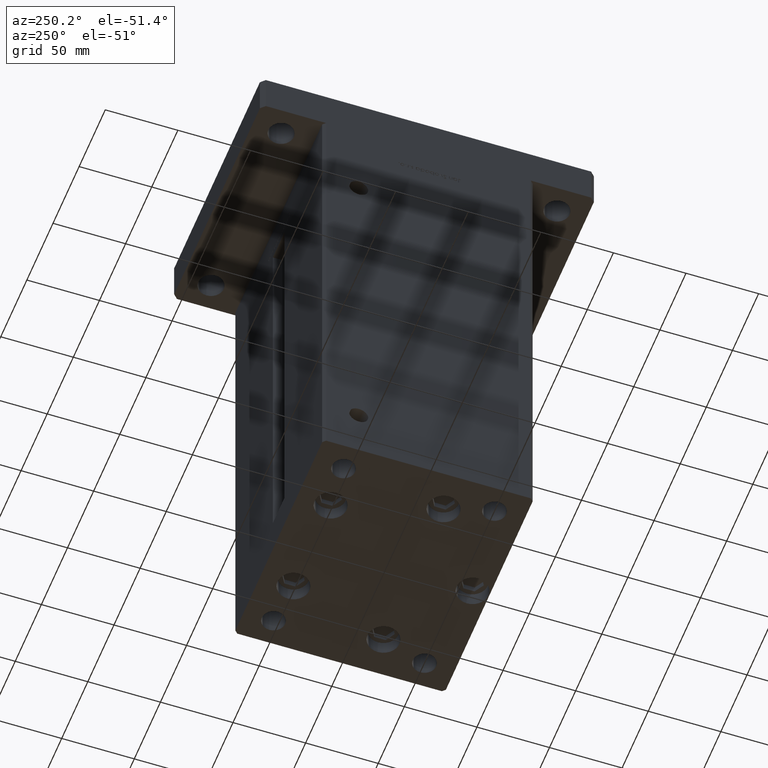
[diagram: clean part render]
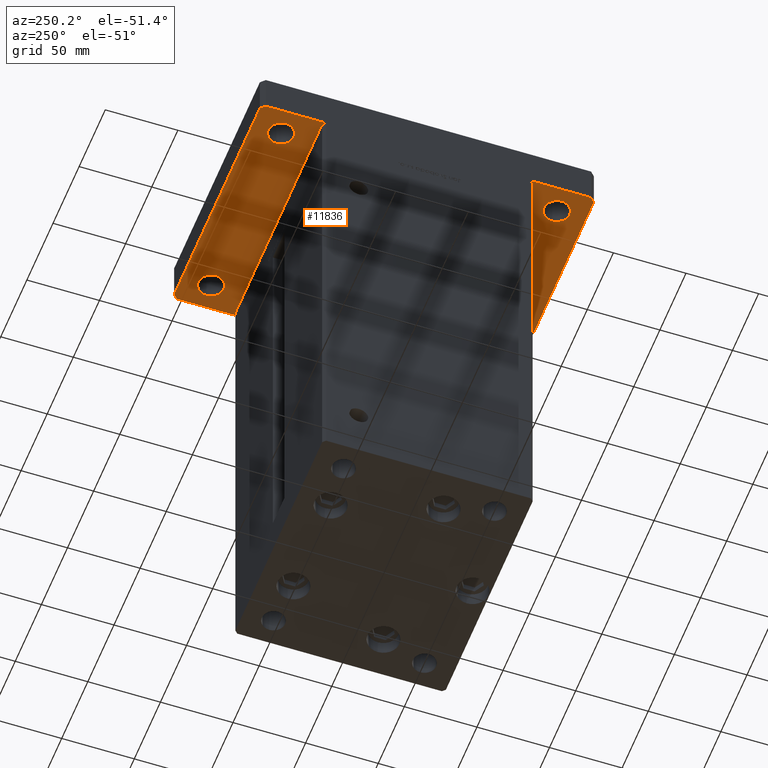
[diagram: same view with one face highlighted and labeled with its STEP entity id]
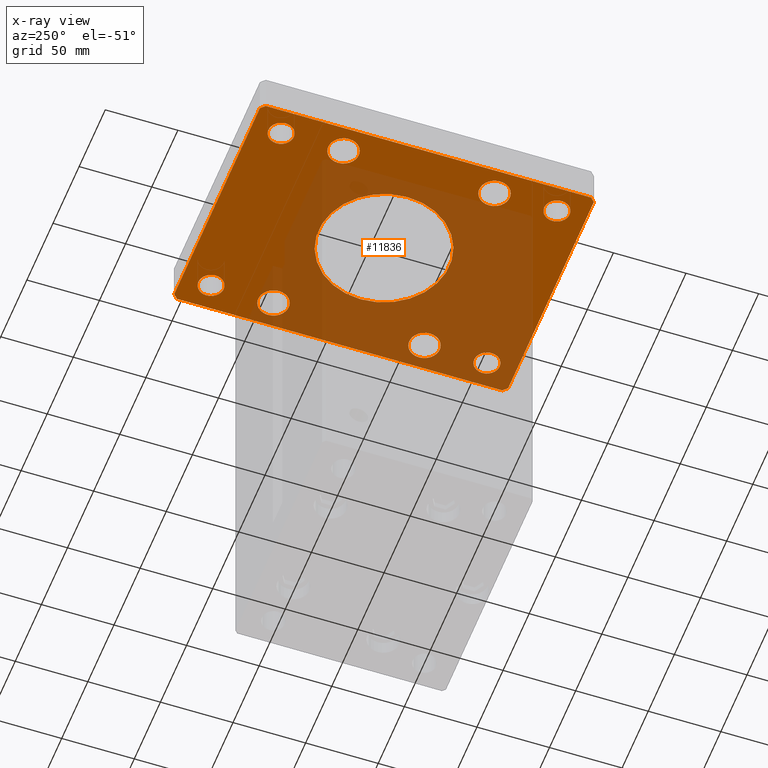
[diagram: x-ray of the same camera — body ghosted, the highlighted face saturated]
A machine part, auxiliary view. The second image highlights one B-rep face of the part: STEP entity #11836.
The next image is the same camera in x-ray: the body ghosted, the highlighted face saturated — about 54% of this face is hidden behind the body in this view.
In plain terms, the highlighted planar face has unit normal (0, 0, 1).
Its self-contained STEP definition (entity closure, byte-faithful):
#322 = DIRECTION ( 'NONE',  ( 0.000000000000000000, 0.000000000000000000, 1.000000000000000000 ) ) ;
#748 = ORIENTED_EDGE ( 'NONE', *, *, #49288, .F. ) ;
#825 = ORIENTED_EDGE ( 'NONE', *, *, #9032, .T. ) ;
#937 = ORIENTED_EDGE ( 'NONE', *, *, #7989, .T. ) ;
#939 = EDGE_CURVE ( 'NONE', #12426, #35201, #33021, .T. ) ;
#1206 = ORIENTED_EDGE ( 'NONE', *, *, #48727, .T. ) ;
#1315 = LINE ( 'NONE', #5109, #9369 ) ;
#1506 = CARTESIAN_POINT ( 'NONE',  ( 82.00000000000004263, 115.0000000000000284, 0.000000000000000000 ) ) ;
#1670 = CARTESIAN_POINT ( 'NONE',  ( -58.24999999999997158, -95.00000000000001421, 0.000000000000000000 ) ) ;
#1850 = DIRECTION ( 'NONE',  ( 0.000000000000000000, 0.000000000000000000, -1.000000000000000000 ) ) ;
#1914 = CARTESIAN_POINT ( 'NONE',  ( 75.75000000000001421, 94.99999999999997158, 0.000000000000000000 ) ) ;
#1954 = VERTEX_POINT ( 'NONE', #27454 ) ;
#2034 = EDGE_LOOP ( 'NONE', ( #44220, #2956, #50103, #25651, #19753, #5271, #25499, #20722 ) ) ;
#2065 = AXIS2_PLACEMENT_3D ( 'NONE', #53494, #5487, #29101 ) ;
#2224 = VERTEX_POINT ( 'NONE', #27589 ) ;
#2542 = AXIS2_PLACEMENT_3D ( 'NONE', #23956, #27742, #19914 ) ;
#2629 = VERTEX_POINT ( 'NONE', #1506 ) ;
#2956 = ORIENTED_EDGE ( 'NONE', *, *, #47005, .F. ) ;
#3146 = VERTEX_POINT ( 'NONE', #52046 ) ;
#3179 = ORIENTED_EDGE ( 'NONE', *, *, #25388, .T. ) ;
#3905 = VERTEX_POINT ( 'NONE', #40472 ) ;
#4275 = DIRECTION ( 'NONE',  ( 1.239088197126290570E-16, -1.000000000000000000, 0.000000000000000000 ) ) ;
#4656 = CARTESIAN_POINT ( 'NONE',  ( 82.00000000000004263, 115.0000000000000284, 0.000000000000000000 ) ) ;
#4811 = CARTESIAN_POINT ( 'NONE',  ( -85.00000000000001421, 112.0000000000000000, 0.000000000000000000 ) ) ;
#4858 = VERTEX_POINT ( 'NONE', #28781 ) ;
#5103 = FACE_BOUND ( 'NONE', #11895, .T. ) ;
#5109 = CARTESIAN_POINT ( 'NONE',  ( 82.00000000000002842, -114.9999999999999147, 0.000000000000000000 ) ) ;
#5271 = ORIENTED_EDGE ( 'NONE', *, *, #27585, .F. ) ;
#5378 = DIRECTION ( 'NONE',  ( 0.7071067811865459074, 0.7071067811865491270, 0.000000000000000000 ) ) ;
#5487 = DIRECTION ( 'NONE',  ( 0.000000000000000000, 0.000000000000000000, 1.000000000000000000 ) ) ;
#5833 = CARTESIAN_POINT ( 'NONE',  ( -82.00000000000002842, 115.0000000000000000, 0.000000000000000000 ) ) ;
#5879 = EDGE_LOOP ( 'NONE', ( #11611, #825 ) ) ;
#5908 = FACE_BOUND ( 'NONE', #36641, .T. ) ;
#6255 = EDGE_LOOP ( 'NONE', ( #8854, #19737 ) ) ;
#6922 = DIRECTION ( 'NONE',  ( 0.000000000000000000, 0.000000000000000000, -1.000000000000000000 ) ) ;
#7023 = ORIENTED_EDGE ( 'NONE', *, *, #14608, .T. ) ;
#7060 = DIRECTION ( 'NONE',  ( 1.000000000000000000, 6.769652589177783879E-16, 0.000000000000000000 ) ) ;
#7235 = VECTOR ( 'NONE', #7060, 1000.000000000000000 ) ;
#7267 = DIRECTION ( 'NONE',  ( 0.000000000000000000, 0.000000000000000000, 1.000000000000000000 ) ) ;
#7410 = CARTESIAN_POINT ( 'NONE',  ( 75.74999999999998579, -95.00000000000001421, 0.000000000000000000 ) ) ;
#7537 = CARTESIAN_POINT ( 'NONE',  ( 67.00000000000000000, 94.99999999999997158, 0.000000000000000000 ) ) ;
#7732 = DIRECTION ( 'NONE',  ( -1.000000000000000000, 0.000000000000000000, 0.000000000000000000 ) ) ;
#7895 = CARTESIAN_POINT ( 'NONE',  ( 66.99999999999997158, -95.00000000000001421, 0.000000000000000000 ) ) ;
#7989 = EDGE_CURVE ( 'NONE', #12860, #40919, #12575, .T. ) ;
#8007 = CIRCLE ( 'NONE', #48608, 10.49999999999999467 ) ;
#8361 = CARTESIAN_POINT ( 'NONE',  ( -66.99999999999997158, -95.00000000000001421, 0.000000000000000000 ) ) ;
#8766 = CARTESIAN_POINT ( 'NONE',  ( 82.00000000000002842, -114.9999999999999147, 0.000000000000000000 ) ) ;
#8854 = ORIENTED_EDGE ( 'NONE', *, *, #24662, .T. ) ;
#9032 = EDGE_CURVE ( 'NONE', #29177, #50013, #16942, .T. ) ;
#9046 = EDGE_CURVE ( 'NONE', #2629, #24919, #29282, .T. ) ;
#9187 = CARTESIAN_POINT ( 'NONE',  ( 0.000000000000000000, 0.000000000000000000, 0.000000000000000000 ) ) ;
#9369 = VECTOR ( 'NONE', #5378, 1000.000000000000114 ) ;
#9373 = DIRECTION ( 'NONE',  ( 1.000000000000000000, 0.000000000000000000, 0.000000000000000000 ) ) ;
#9524 = CARTESIAN_POINT ( 'NONE',  ( -45.00000000000000711, 0.000000000000000000, 0.000000000000000000 ) ) ;
#9860 = DIRECTION ( 'NONE',  ( 0.000000000000000000, 0.000000000000000000, 1.000000000000000000 ) ) ;
#9883 = ORIENTED_EDGE ( 'NONE', *, *, #52875, .T. ) ;
#10581 = AXIS2_PLACEMENT_3D ( 'NONE', #14276, #47296, #46765 ) ;
#10611 = CARTESIAN_POINT ( 'NONE',  ( -58.24999999999999289, 95.00000000000001421, 0.000000000000000000 ) ) ;
#11380 = LINE ( 'NONE', #47941, #7235 ) ;
#11611 = ORIENTED_EDGE ( 'NONE', *, *, #47408, .T. ) ;
#11836 = ADVANCED_FACE ( 'NONE', ( #16500, #49523, #38675, #42193, #5908, #22685, #5103, #13234, #21630, #47063 ), #39206, .F. ) ;
#11895 = EDGE_LOOP ( 'NONE', ( #28639, #13688 ) ) ;
#12136 = EDGE_LOOP ( 'NONE', ( #42409, #53185 ) ) ;
#12413 = DIRECTION ( 'NONE',  ( 1.000000000000000000, 0.000000000000000000, 0.000000000000000000 ) ) ;
#12420 = VERTEX_POINT ( 'NONE', #1914 ) ;
#12426 = VERTEX_POINT ( 'NONE', #9524 ) ;
#12575 = CIRCLE ( 'NONE', #52343, 8.750000000000007105 ) ;
#12860 = VERTEX_POINT ( 'NONE', #1670 ) ;
#13018 = AXIS2_PLACEMENT_3D ( 'NONE', #28249, #26327, #26051 ) ;
#13234 = FACE_BOUND ( 'NONE', #5879, .T. ) ;
#13332 = AXIS2_PLACEMENT_3D ( 'NONE', #30112, #49422, #46638 ) ;
#13688 = ORIENTED_EDGE ( 'NONE', *, *, #22998, .T. ) ;
#13913 = CARTESIAN_POINT ( 'NONE',  ( -66.99999999999997158, -95.00000000000001421, 0.000000000000000000 ) ) ;
#14255 = CARTESIAN_POINT ( 'NONE',  ( 56.50000000000002132, -52.00000000000000000, 0.000000000000000000 ) ) ;
#14276 = CARTESIAN_POINT ( 'NONE',  ( 67.00000000000001421, 52.00000000000000000, 0.000000000000000000 ) ) ;
#14346 = EDGE_CURVE ( 'NONE', #2224, #25101, #36978, .T. ) ;
#14608 = EDGE_CURVE ( 'NONE', #41682, #29906, #47353, .T. ) ;
#14651 = CIRCLE ( 'NONE', #36288, 8.750000000000007105 ) ;
#15122 = DIRECTION ( 'NONE',  ( 0.000000000000000000, 0.000000000000000000, 1.000000000000000000 ) ) ;
#15326 = VERTEX_POINT ( 'NONE', #45585 ) ;
#15613 = DIRECTION ( 'NONE',  ( -0.7071067811865426878, 0.7071067811865524577, 0.000000000000000000 ) ) ;
#16500 = FACE_BOUND ( 'NONE', #19467, .T. ) ;
#16750 = DIRECTION ( 'NONE',  ( 0.000000000000000000, 0.000000000000000000, 1.000000000000000000 ) ) ;
#16787 = EDGE_CURVE ( 'NONE', #22411, #2224, #1315, .T. ) ;
#16942 = CIRCLE ( 'NONE', #26438, 10.49999999999999467 ) ;
#17551 = CIRCLE ( 'NONE', #20179, 8.750000000000007105 ) ;
#17868 = CARTESIAN_POINT ( 'NONE',  ( 56.50000000000002132, 52.00000000000000000, 0.000000000000000000 ) ) ;
#18129 = EDGE_LOOP ( 'NONE', ( #3179, #7023 ) ) ;
#18226 = CIRCLE ( 'NONE', #13018, 10.50000000000000178 ) ;
#18495 = VERTEX_POINT ( 'NONE', #27383 ) ;
#18738 = AXIS2_PLACEMENT_3D ( 'NONE', #9187, #22158, #29736 ) ;
#18936 = CARTESIAN_POINT ( 'NONE',  ( 58.24999999999996447, -95.00000000000001421, 0.000000000000000000 ) ) ;
#19467 = EDGE_LOOP ( 'NONE', ( #42359, #748 ) ) ;
#19737 = ORIENTED_EDGE ( 'NONE', *, *, #39302, .T. ) ;
#19753 = ORIENTED_EDGE ( 'NONE', *, *, #9046, .F. ) ;
#19787 = VERTEX_POINT ( 'NONE', #42993 ) ;
#19914 = DIRECTION ( 'NONE',  ( 1.000000000000000000, 0.000000000000000000, 0.000000000000000000 ) ) ;
#20067 = CARTESIAN_POINT ( 'NONE',  ( -84.99999999999998579, -112.0000000000000142, 0.000000000000000000 ) ) ;
#20179 = AXIS2_PLACEMENT_3D ( 'NONE', #29339, #45868, #38557 ) ;
#20722 = ORIENTED_EDGE ( 'NONE', *, *, #16787, .F. ) ;
#20885 = CARTESIAN_POINT ( 'NONE',  ( -77.50000000000000000, 52.00000000000001421, 0.000000000000000000 ) ) ;
#21223 = DIRECTION ( 'NONE',  ( 0.000000000000000000, 0.000000000000000000, 1.000000000000000000 ) ) ;
#21229 = VECTOR ( 'NONE', #37683, 1000.000000000000000 ) ;
#21553 = DIRECTION ( 'NONE',  ( 0.000000000000000000, 0.000000000000000000, 1.000000000000000000 ) ) ;
#21630 = FACE_BOUND ( 'NONE', #12136, .T. ) ;
#22142 = VERTEX_POINT ( 'NONE', #42115 ) ;
#22158 = DIRECTION ( 'NONE',  ( 0.000000000000000000, 0.000000000000000000, 1.000000000000000000 ) ) ;
#22299 = CARTESIAN_POINT ( 'NONE',  ( -67.00000000000000000, -52.00000000000000000, 0.000000000000000000 ) ) ;
#22411 = VERTEX_POINT ( 'NONE', #8766 ) ;
#22525 = CARTESIAN_POINT ( 'NONE',  ( -67.00000000000000000, 95.00000000000001421, 0.000000000000000000 ) ) ;
#22685 = FACE_BOUND ( 'NONE', #34408, .T. ) ;
#22859 = CIRCLE ( 'NONE', #35005, 8.750000000000007105 ) ;
#22998 = EDGE_CURVE ( 'NONE', #18495, #40311, #52673, .T. ) ;
#23228 = DIRECTION ( 'NONE',  ( 1.000000000000000000, 0.000000000000000000, 0.000000000000000000 ) ) ;
#23956 = CARTESIAN_POINT ( 'NONE',  ( 66.99999999999997158, -95.00000000000001421, 0.000000000000000000 ) ) ;
#24203 = ORIENTED_EDGE ( 'NONE', *, *, #35736, .T. ) ;
#24378 = LINE ( 'NONE', #20067, #48598 ) ;
#24662 = EDGE_CURVE ( 'NONE', #49591, #12420, #14651, .T. ) ;
#24919 = VERTEX_POINT ( 'NONE', #25477 ) ;
#25101 = VERTEX_POINT ( 'NONE', #30206 ) ;
#25388 = EDGE_CURVE ( 'NONE', #29906, #41682, #25882, .T. ) ;
#25477 = CARTESIAN_POINT ( 'NONE',  ( -82.00000000000002842, 115.0000000000000000, 0.000000000000000000 ) ) ;
#25499 = ORIENTED_EDGE ( 'NONE', *, *, #14346, .F. ) ;
#25651 = ORIENTED_EDGE ( 'NONE', *, *, #43427, .F. ) ;
#25882 = CIRCLE ( 'NONE', #2542, 8.750000000000007105 ) ;
#25909 = AXIS2_PLACEMENT_3D ( 'NONE', #7537, #7267, #32424 ) ;
#26051 = DIRECTION ( 'NONE',  ( 1.000000000000000000, 0.000000000000000000, 0.000000000000000000 ) ) ;
#26176 = AXIS2_PLACEMENT_3D ( 'NONE', #27478, #6922, #7732 ) ;
#26292 = CARTESIAN_POINT ( 'NONE',  ( -75.74999999999998579, -95.00000000000001421, 0.000000000000000000 ) ) ;
#26327 = DIRECTION ( 'NONE',  ( 0.000000000000000000, 0.000000000000000000, 1.000000000000000000 ) ) ;
#26438 = AXIS2_PLACEMENT_3D ( 'NONE', #33619, #322, #38222 ) ;
#26577 = DIRECTION ( 'NONE',  ( 0.000000000000000000, 0.000000000000000000, 1.000000000000000000 ) ) ;
#27025 = AXIS2_PLACEMENT_3D ( 'NONE', #22299, #46407, #38282 ) ;
#27223 = EDGE_CURVE ( 'NONE', #3905, #37123, #18226, .T. ) ;
#27383 = CARTESIAN_POINT ( 'NONE',  ( 77.50000000000001421, -52.00000000000000000, 0.000000000000000000 ) ) ;
#27454 = CARTESIAN_POINT ( 'NONE',  ( -85.00000000000001421, 112.0000000000000000, 0.000000000000000000 ) ) ;
#27478 = CARTESIAN_POINT ( 'NONE',  ( 0.000000000000000000, 0.000000000000000000, 0.000000000000000000 ) ) ;
#27585 = EDGE_CURVE ( 'NONE', #25101, #2629, #44042, .T. ) ;
#27589 = CARTESIAN_POINT ( 'NONE',  ( 85.00000000000001421, -111.9999999999999005, 0.000000000000000000 ) ) ;
#27742 = DIRECTION ( 'NONE',  ( 0.000000000000000000, 0.000000000000000000, 1.000000000000000000 ) ) ;
#28249 = CARTESIAN_POINT ( 'NONE',  ( -67.00000000000000000, 52.00000000000001421, 0.000000000000000000 ) ) ;
#28318 = CARTESIAN_POINT ( 'NONE',  ( 85.00000000000001421, 112.0000000000000142, 0.000000000000000000 ) ) ;
#28639 = ORIENTED_EDGE ( 'NONE', *, *, #32252, .T. ) ;
#28781 = CARTESIAN_POINT ( 'NONE',  ( -77.50000000000000000, -52.00000000000000000, 0.000000000000000000 ) ) ;
#29101 = DIRECTION ( 'NONE',  ( 1.000000000000000000, 0.000000000000000000, 0.000000000000000000 ) ) ;
#29177 = VERTEX_POINT ( 'NONE', #53016 ) ;
#29282 = LINE ( 'NONE', #4656, #21229 ) ;
#29323 = AXIS2_PLACEMENT_3D ( 'NONE', #38062, #21553, #9373 ) ;
#29339 = CARTESIAN_POINT ( 'NONE',  ( -67.00000000000000000, 95.00000000000001421, 0.000000000000000000 ) ) ;
#29640 = DIRECTION ( 'NONE',  ( 0.000000000000000000, 1.000000000000000000, 0.000000000000000000 ) ) ;
#29736 = DIRECTION ( 'NONE',  ( 1.000000000000000000, 0.000000000000000000, -0.000000000000000000 ) ) ;
#29906 = VERTEX_POINT ( 'NONE', #18936 ) ;
#30112 = CARTESIAN_POINT ( 'NONE',  ( -67.00000000000000000, 52.00000000000001421, 0.000000000000000000 ) ) ;
#30206 = CARTESIAN_POINT ( 'NONE',  ( 85.00000000000001421, 112.0000000000000142, 0.000000000000000000 ) ) ;
#31618 = CARTESIAN_POINT ( 'NONE',  ( 67.00000000000001421, -52.00000000000000000, 0.000000000000000000 ) ) ;
#31750 = CARTESIAN_POINT ( 'NONE',  ( 58.24999999999998579, 94.99999999999997158, 0.000000000000000000 ) ) ;
#32030 = VECTOR ( 'NONE', #15613, 1000.000000000000000 ) ;
#32252 = EDGE_CURVE ( 'NONE', #40311, #18495, #8007, .T. ) ;
#32424 = DIRECTION ( 'NONE',  ( 1.000000000000000000, 0.000000000000000000, 0.000000000000000000 ) ) ;
#33021 = CIRCLE ( 'NONE', #26176, 45.00000000000000711 ) ;
#33619 = CARTESIAN_POINT ( 'NONE',  ( 67.00000000000001421, 52.00000000000000000, 0.000000000000000000 ) ) ;
#33668 = DIRECTION ( 'NONE',  ( 1.000000000000000000, 0.000000000000000000, 0.000000000000000000 ) ) ;
#34408 = EDGE_LOOP ( 'NONE', ( #42403, #53562 ) ) ;
#34982 = DIRECTION ( 'NONE',  ( 1.000000000000000000, 0.000000000000000000, 0.000000000000000000 ) ) ;
#35005 = AXIS2_PLACEMENT_3D ( 'NONE', #8361, #16750, #12413 ) ;
#35075 = EDGE_LOOP ( 'NONE', ( #9883, #937 ) ) ;
#35201 = VERTEX_POINT ( 'NONE', #36231 ) ;
#35736 = EDGE_CURVE ( 'NONE', #52525, #22142, #41764, .T. ) ;
#36231 = CARTESIAN_POINT ( 'NONE',  ( 45.00000000000000711, 5.510910596163090344E-15, 0.000000000000000000 ) ) ;
#36276 = CIRCLE ( 'NONE', #25909, 8.750000000000007105 ) ;
#36288 = AXIS2_PLACEMENT_3D ( 'NONE', #45858, #21223, #33668 ) ;
#36641 = EDGE_LOOP ( 'NONE', ( #1206, #24203 ) ) ;
#36942 = EDGE_CURVE ( 'NONE', #3146, #22411, #11380, .T. ) ;
#36954 = VECTOR ( 'NONE', #29640, 1000.000000000000000 ) ;
#36978 = LINE ( 'NONE', #50503, #36954 ) ;
#37123 = VERTEX_POINT ( 'NONE', #20885 ) ;
#37683 = DIRECTION ( 'NONE',  ( -1.000000000000000000, -1.692413147294444984E-16, 0.000000000000000000 ) ) ;
#38062 = CARTESIAN_POINT ( 'NONE',  ( 67.00000000000001421, -52.00000000000000000, 0.000000000000000000 ) ) ;
#38105 = LINE ( 'NONE', #4811, #51388 ) ;
#38222 = DIRECTION ( 'NONE',  ( 1.000000000000000000, 0.000000000000000000, 0.000000000000000000 ) ) ;
#38282 = DIRECTION ( 'NONE',  ( 1.000000000000000000, 0.000000000000000000, 0.000000000000000000 ) ) ;
#38405 = CIRCLE ( 'NONE', #2065, 10.50000000000000178 ) ;
#38557 = DIRECTION ( 'NONE',  ( 1.000000000000000000, 0.000000000000000000, 0.000000000000000000 ) ) ;
#38675 = FACE_BOUND ( 'NONE', #35075, .T. ) ;
#39130 = LINE ( 'NONE', #5833, #39868 ) ;
#39179 = AXIS2_PLACEMENT_3D ( 'NONE', #43273, #1850, #39479 ) ;
#39192 = AXIS2_PLACEMENT_3D ( 'NONE', #22525, #26577, #34982 ) ;
#39206 = PLANE ( 'NONE',  #18738 ) ;
#39302 = EDGE_CURVE ( 'NONE', #12420, #49591, #36276, .T. ) ;
#39479 = DIRECTION ( 'NONE',  ( -1.000000000000000000, 0.000000000000000000, 0.000000000000000000 ) ) ;
#39868 = VECTOR ( 'NONE', #42928, 1000.000000000000114 ) ;
#40311 = VERTEX_POINT ( 'NONE', #14255 ) ;
#40472 = CARTESIAN_POINT ( 'NONE',  ( -56.50000000000000000, 52.00000000000001421, 0.000000000000000000 ) ) ;
#40878 = CIRCLE ( 'NONE', #27025, 10.50000000000000178 ) ;
#40914 = CIRCLE ( 'NONE', #39179, 45.00000000000000711 ) ;
#40919 = VERTEX_POINT ( 'NONE', #26292 ) ;
#41275 = AXIS2_PLACEMENT_3D ( 'NONE', #7895, #49571, #45237 ) ;
#41682 = VERTEX_POINT ( 'NONE', #7410 ) ;
#41764 = CIRCLE ( 'NONE', #39192, 8.750000000000007105 ) ;
#42115 = CARTESIAN_POINT ( 'NONE',  ( -75.75000000000001421, 95.00000000000001421, 0.000000000000000000 ) ) ;
#42193 = FACE_BOUND ( 'NONE', #6255, .T. ) ;
#42359 = ORIENTED_EDGE ( 'NONE', *, *, #939, .F. ) ;
#42403 = ORIENTED_EDGE ( 'NONE', *, *, #52297, .T. ) ;
#42409 = ORIENTED_EDGE ( 'NONE', *, *, #52399, .T. ) ;
#42928 = DIRECTION ( 'NONE',  ( -0.7071067811865459074, -0.7071067811865491270, 0.000000000000000000 ) ) ;
#42993 = CARTESIAN_POINT ( 'NONE',  ( -56.50000000000000000, -52.00000000000000000, 0.000000000000000000 ) ) ;
#43273 = CARTESIAN_POINT ( 'NONE',  ( 0.000000000000000000, 0.000000000000000000, 0.000000000000000000 ) ) ;
#43427 = EDGE_CURVE ( 'NONE', #24919, #1954, #39130, .T. ) ;
#44042 = LINE ( 'NONE', #28318, #32030 ) ;
#44220 = ORIENTED_EDGE ( 'NONE', *, *, #36942, .F. ) ;
#45237 = DIRECTION ( 'NONE',  ( 1.000000000000000000, 0.000000000000000000, 0.000000000000000000 ) ) ;
#45585 = CARTESIAN_POINT ( 'NONE',  ( -84.99999999999998579, -112.0000000000000142, 0.000000000000000000 ) ) ;
#45858 = CARTESIAN_POINT ( 'NONE',  ( 67.00000000000000000, 94.99999999999997158, 0.000000000000000000 ) ) ;
#45868 = DIRECTION ( 'NONE',  ( 0.000000000000000000, 0.000000000000000000, 1.000000000000000000 ) ) ;
#46164 = CIRCLE ( 'NONE', #13332, 10.50000000000000178 ) ;
#46407 = DIRECTION ( 'NONE',  ( 0.000000000000000000, 0.000000000000000000, 1.000000000000000000 ) ) ;
#46638 = DIRECTION ( 'NONE',  ( 1.000000000000000000, 0.000000000000000000, 0.000000000000000000 ) ) ;
#46765 = DIRECTION ( 'NONE',  ( 1.000000000000000000, 0.000000000000000000, 0.000000000000000000 ) ) ;
#47005 = EDGE_CURVE ( 'NONE', #15326, #3146, #24378, .T. ) ;
#47063 = FACE_BOUND ( 'NONE', #18129, .T. ) ;
#47296 = DIRECTION ( 'NONE',  ( 0.000000000000000000, 0.000000000000000000, 1.000000000000000000 ) ) ;
#47353 = CIRCLE ( 'NONE', #41275, 8.750000000000007105 ) ;
#47408 = EDGE_CURVE ( 'NONE', #50013, #29177, #49497, .T. ) ;
#47941 = CARTESIAN_POINT ( 'NONE',  ( -81.99999999999998579, -115.0000000000000142, 0.000000000000000000 ) ) ;
#48598 = VECTOR ( 'NONE', #49558, 1000.000000000000114 ) ;
#48608 = AXIS2_PLACEMENT_3D ( 'NONE', #31618, #15122, #23228 ) ;
#48682 = EDGE_CURVE ( 'NONE', #19787, #4858, #40878, .T. ) ;
#48727 = EDGE_CURVE ( 'NONE', #22142, #52525, #17551, .T. ) ;
#49288 = EDGE_CURVE ( 'NONE', #35201, #12426, #40914, .T. ) ;
#49422 = DIRECTION ( 'NONE',  ( 0.000000000000000000, 0.000000000000000000, 1.000000000000000000 ) ) ;
#49497 = CIRCLE ( 'NONE', #10581, 10.49999999999999467 ) ;
#49523 = FACE_OUTER_BOUND ( 'NONE', #2034, .T. ) ;
#49558 = DIRECTION ( 'NONE',  ( 0.7071067811865474617, -0.7071067811865474617, 0.000000000000000000 ) ) ;
#49571 = DIRECTION ( 'NONE',  ( 0.000000000000000000, 0.000000000000000000, 1.000000000000000000 ) ) ;
#49591 = VERTEX_POINT ( 'NONE', #31750 ) ;
#50013 = VERTEX_POINT ( 'NONE', #17868 ) ;
#50103 = ORIENTED_EDGE ( 'NONE', *, *, #51985, .F. ) ;
#50503 = CARTESIAN_POINT ( 'NONE',  ( 85.00000000000001421, -111.9999999999999005, 0.000000000000000000 ) ) ;
#51388 = VECTOR ( 'NONE', #4275, 1000.000000000000000 ) ;
#51787 = DIRECTION ( 'NONE',  ( 1.000000000000000000, 0.000000000000000000, 0.000000000000000000 ) ) ;
#51985 = EDGE_CURVE ( 'NONE', #1954, #15326, #38105, .T. ) ;
#52046 = CARTESIAN_POINT ( 'NONE',  ( -81.99999999999998579, -115.0000000000000142, 0.000000000000000000 ) ) ;
#52297 = EDGE_CURVE ( 'NONE', #4858, #19787, #38405, .T. ) ;
#52343 = AXIS2_PLACEMENT_3D ( 'NONE', #13913, #9860, #51787 ) ;
#52399 = EDGE_CURVE ( 'NONE', #37123, #3905, #46164, .T. ) ;
#52525 = VERTEX_POINT ( 'NONE', #10611 ) ;
#52673 = CIRCLE ( 'NONE', #29323, 10.49999999999999467 ) ;
#52875 = EDGE_CURVE ( 'NONE', #40919, #12860, #22859, .T. ) ;
#53016 = CARTESIAN_POINT ( 'NONE',  ( 77.50000000000001421, 52.00000000000000000, 0.000000000000000000 ) ) ;
#53185 = ORIENTED_EDGE ( 'NONE', *, *, #27223, .T. ) ;
#53494 = CARTESIAN_POINT ( 'NONE',  ( -67.00000000000000000, -52.00000000000000000, 0.000000000000000000 ) ) ;
#53562 = ORIENTED_EDGE ( 'NONE', *, *, #48682, .T. ) ;